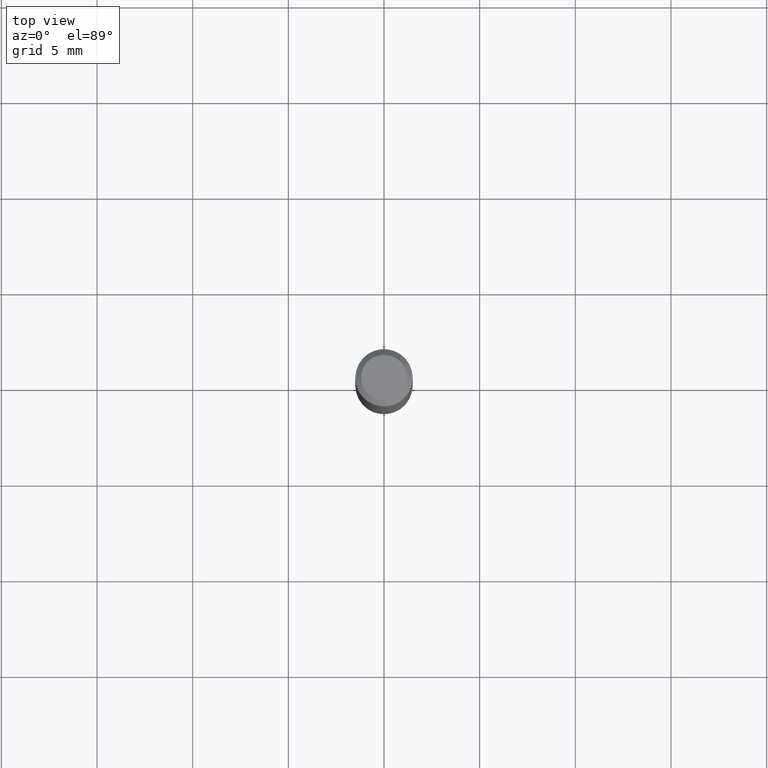
[diagram: clean part render]
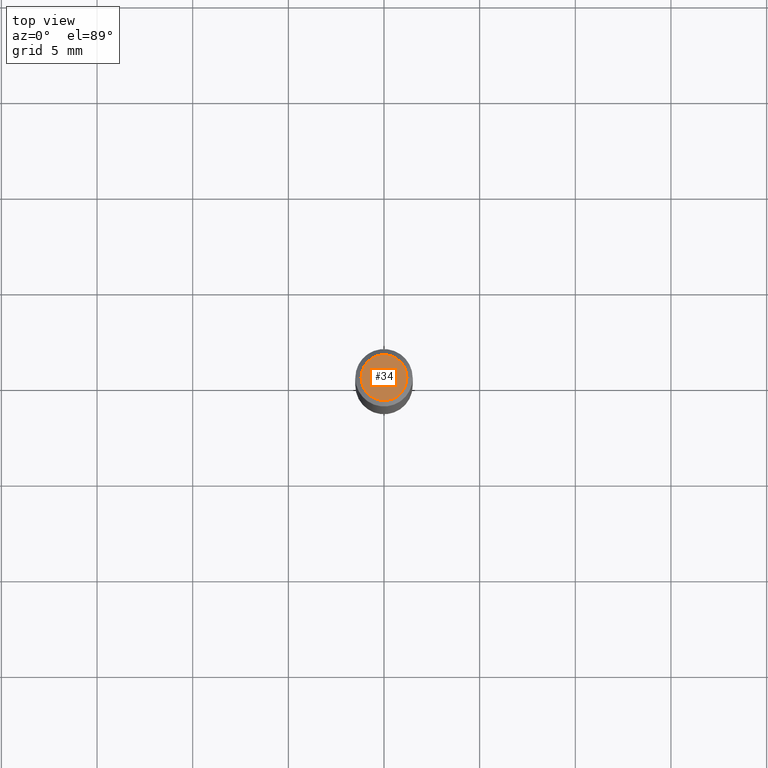
[diagram: same view with one face highlighted and labeled with its STEP entity id]
A machine part, top view. The second image highlights one B-rep face of the part: STEP entity #34.
In plain terms, the highlighted planar face has unit normal (0, -0, -1).
Its self-contained STEP definition (entity closure, byte-faithful):
#21 = FACE_OUTER_BOUND ( 'NONE', #241, .T. ) ;
#34 = ADVANCED_FACE ( 'NONE', ( #21 ), #478, .F. ) ;
#44 = EDGE_CURVE ( 'NONE', #181, #148, #359, .T. ) ;
#55 = DIRECTION ( 'NONE',  ( -1.000000000000000000, 6.982962677686265922E-15, -4.876176775795935793E-29 ) ) ;
#118 = AXIS2_PLACEMENT_3D ( 'NONE', #333, #324, #472 ) ;
#126 = DIRECTION ( 'NONE',  ( -2.445468806185136597E-29, 3.491481338843145583E-15, 1.000000000000000000 ) ) ;
#135 = DIRECTION ( 'NONE',  ( 1.000000000000000000, -6.982962677686266711E-15, 4.876185090822587894E-29 ) ) ;
#145 = CARTESIAN_POINT ( 'NONE',  ( 4.132873053354867254E-48, -5.900647395337818946E-34, -1.690012582823346072E-19 ) ) ;
#148 = VERTEX_POINT ( 'NONE', #414 ) ;
#181 = VERTEX_POINT ( 'NONE', #489 ) ;
#241 = EDGE_LOOP ( 'NONE', ( #475, #480 ) ) ;
#302 = EDGE_CURVE ( 'NONE', #148, #181, #375, .T. ) ;
#318 = AXIS2_PLACEMENT_3D ( 'NONE', #145, #371, #55 ) ;
#321 = CARTESIAN_POINT ( 'NONE',  ( 8.265746106709734507E-48, -1.180129479067563789E-33, -3.380025165646692144E-19 ) ) ;
#324 = DIRECTION ( 'NONE',  ( -2.445468806185136597E-29, 3.491481338843145583E-15, 1.000000000000000000 ) ) ;
#328 = AXIS2_PLACEMENT_3D ( 'NONE', #321, #126, #135 ) ;
#333 = CARTESIAN_POINT ( 'NONE',  ( 8.265746106709734507E-48, -1.180129479067563789E-33, -3.380025165646692144E-19 ) ) ;
#359 = CIRCLE ( 'NONE', #118, 0.04724000000000000421 ) ;
#371 = DIRECTION ( 'NONE',  ( 2.438088387897960049E-29, -3.491481338843145188E-15, -1.000000000000000000 ) ) ;
#375 = CIRCLE ( 'NONE', #328, 0.04724000000000000421 ) ;
#414 = CARTESIAN_POINT ( 'NONE',  ( -0.04724000000000000421, 3.504923541997677355E-16, -3.380025165670481712E-19 ) ) ;
#472 = DIRECTION ( 'NONE',  ( 1.000000000000000000, -6.982962677686266711E-15, 4.876185090822587894E-29 ) ) ;
#475 = ORIENTED_EDGE ( 'NONE', *, *, #302, .T. ) ;
#478 = PLANE ( 'NONE',  #318 ) ;
#480 = ORIENTED_EDGE ( 'NONE', *, *, #44, .T. ) ;
#489 = CARTESIAN_POINT ( 'NONE',  ( 0.04724000000000000421, -3.852183633974369345E-16, -3.380025165621689721E-19 ) ) ;